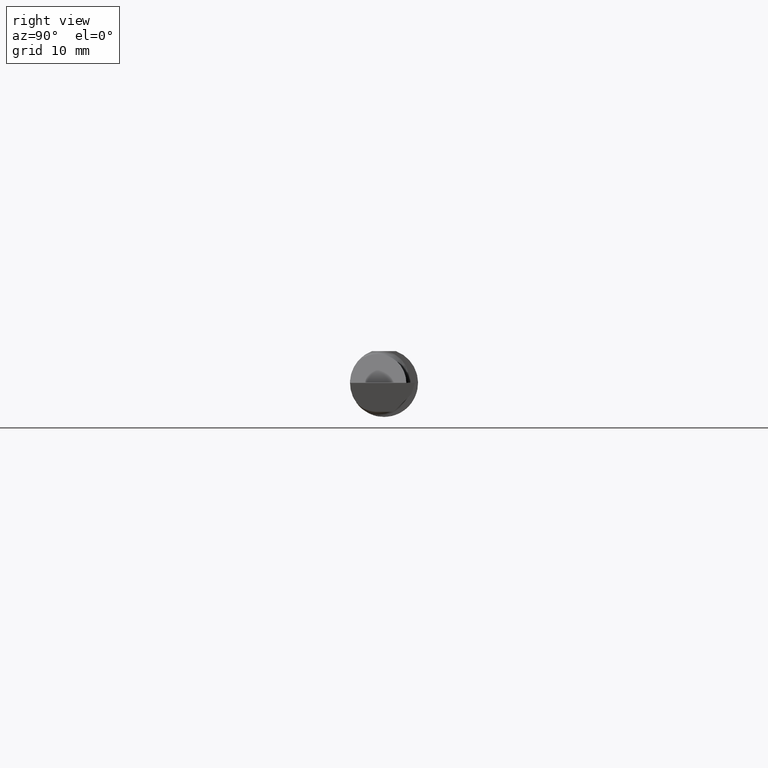
[diagram: clean part render]
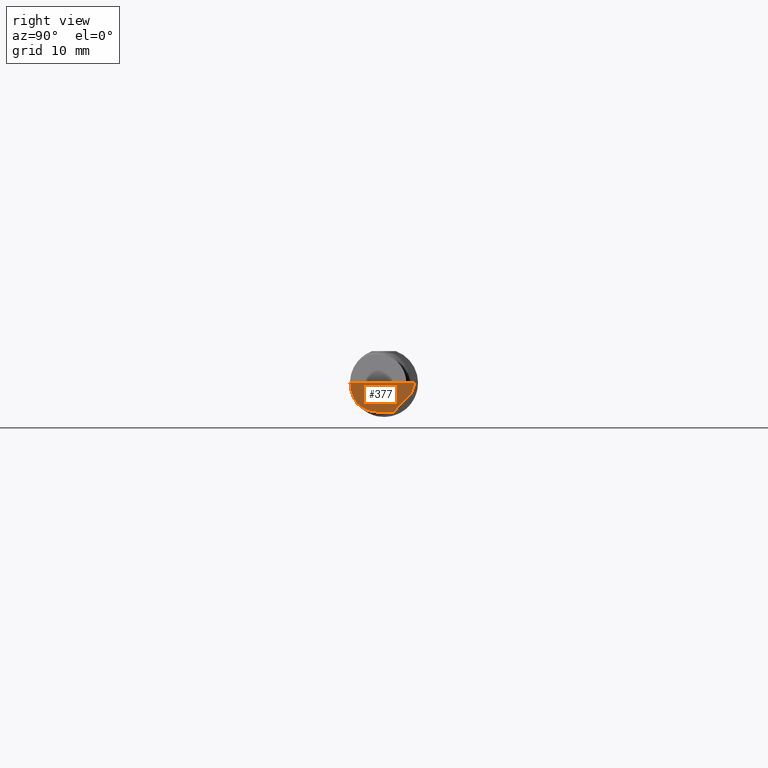
[diagram: same view with one face highlighted and labeled with its STEP entity id]
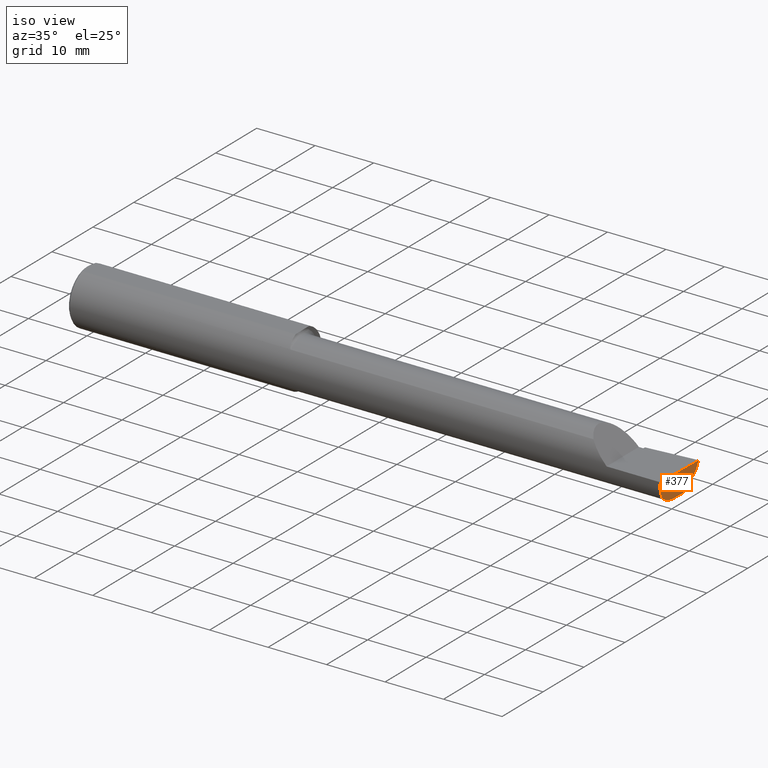
[diagram: same view with one face highlighted and labeled with its STEP entity id]
A machine part, right view. The second image highlights one B-rep face of the part: STEP entity #377.
A second angle (iso view) of the same face is appended — the face is thin or edge-on in the first view.
In plain terms, the highlighted planar face has unit normal (-0.9922, 0.026, 0.1219).
Its self-contained STEP definition (entity closure, byte-faithful):
#8 = ORIENTED_EDGE ( 'NONE', *, *, #462, .F. ) ;
#28 = CARTESIAN_POINT ( 'NONE',  ( 3.974646882977779239, -0.1156304438478838320, -0.1453804992321581224 ) ) ;
#42 = CARTESIAN_POINT ( 'NONE',  ( 3.977259974483411398, 0.05296767626088370873, -0.1600499999999999701 ) ) ;
#58 = LINE ( 'NONE', #571, #288 ) ;
#60 = VERTEX_POINT ( 'NONE', #42 ) ;
#66 = AXIS2_PLACEMENT_3D ( 'NONE', #241, #545, #193 ) ;
#118 = CARTESIAN_POINT ( 'NONE',  ( 3.977223734188806592, -0.1454917112299466964, -0.1180346748349052066 ) ) ;
#168 = ORIENTED_EDGE ( 'NONE', *, *, #200, .F. ) ;
#170 = DIRECTION ( 'NONE',  ( -0.1240019227988168882, -0.3022330132596584562, -0.9451342385281487068 ) ) ;
#189 = CARTESIAN_POINT ( 'NONE',  ( 3.985293537526797270, -0.1873499999999999888, -0.04340998088356431972 ) ) ;
#190 = VECTOR ( 'NONE', #212, 39.37007874015748143 ) ;
#193 = DIRECTION ( 'NONE',  ( 0.1219104985251813905, 0.000000000000000000, 0.9925410975618802478 ) ) ;
#198 = CARTESIAN_POINT ( 'NONE',  ( 3.990625440078222397, -0.1873499999999999888, -1.699186010220949670E-16 ) ) ;
#200 = EDGE_CURVE ( 'NONE', #293, #247, #515, .T. ) ;
#206 = LINE ( 'NONE', #265, #470 ) ;
#209 = EDGE_CURVE ( 'NONE', #247, #369, #58, .T. ) ;
#212 = DIRECTION ( 'NONE',  ( -0.1053106618240596676, -0.6976485211320203605, -0.7086580314005362924 ) ) ;
#214 = CARTESIAN_POINT ( 'NONE',  ( 3.999999999999977351, 0.1706500000000262807, 9.240475838569370243E-14 ) ) ;
#241 = CARTESIAN_POINT ( 'NONE',  ( 3.972657716785287008, -0.1026153499216718584, -0.1643501480114538116 ) ) ;
#244 =( BOUNDED_CURVE ( )  B_SPLINE_CURVE ( 3, ( #118, #28, #531, #535 ),
 .UNSPECIFIED., .F., .F. ) 
 B_SPLINE_CURVE_WITH_KNOTS ( ( 4, 4 ),
 ( 5.751779107031163463, 6.493234751459365128 ),
 .UNSPECIFIED. ) 
 CURVE ( )  GEOMETRIC_REPRESENTATION_ITEM ( )  RATIONAL_B_SPLINE_CURVE ( ( 1.000000000000000000, 0.9547092712975351336, 0.9547092712975351336, 1.000000000000000000 ) ) 
 REPRESENTATION_ITEM ( '' )  );
#247 = VERTEX_POINT ( 'NONE', #214 ) ;
#265 = CARTESIAN_POINT ( 'NONE',  ( 3.974910817315460587, -0.03674301662998945284, -0.1600499999999999701 ) ) ;
#288 = VECTOR ( 'NONE', #170, 39.37007874015748143 ) ;
#291 = CARTESIAN_POINT ( 'NONE',  ( 3.974893613600461340, -0.03740000000000000269, -0.1600499999999999701 ) ) ;
#293 = VERTEX_POINT ( 'NONE', #585 ) ;
#294 = FACE_OUTER_BOUND ( 'NONE', #305, .T. ) ;
#305 = EDGE_LOOP ( 'NONE', ( #547, #622, #8, #307, #168, #572 ) ) ;
#307 = ORIENTED_EDGE ( 'NONE', *, *, #209, .F. ) ;
#315 = VERTEX_POINT ( 'NONE', #397 ) ;
#317 =( BOUNDED_CURVE ( )  B_SPLINE_CURVE ( 3, ( #340, #598, #189, #198 ),
 .UNSPECIFIED., .F., .F. ) 
 B_SPLINE_CURVE_WITH_KNOTS ( ( 4, 4 ),
 ( 0.6791649766279211908, 1.360746882515117662 ),
 .UNSPECIFIED. ) 
 CURVE ( )  GEOMETRIC_REPRESENTATION_ITEM ( )  RATIONAL_B_SPLINE_CURVE ( ( 1.000000000000000000, 0.9616603987079550553, 0.9616603987079550553, 1.000000000000000000 ) ) 
 REPRESENTATION_ITEM ( '' )  );
#327 = EDGE_CURVE ( 'NONE', #315, #293, #317, .T. ) ;
#340 = CARTESIAN_POINT ( 'NONE',  ( 3.977223734188806592, -0.1454917112299466964, -0.1180346748349052066 ) ) ;
#342 = PLANE ( 'NONE',  #66 ) ;
#362 = CARTESIAN_POINT ( 'NONE',  ( 3.985884137426715768, 0.1100999211749778550, -0.1020161577657761470 ) ) ;
#369 = VERTEX_POINT ( 'NONE', #494 ) ;
#370 = LINE ( 'NONE', #362, #190 ) ;
#377 = ADVANCED_FACE ( 'NONE', ( #294 ), #342, .F. ) ;
#379 = VERTEX_POINT ( 'NONE', #291 ) ;
#397 = CARTESIAN_POINT ( 'NONE',  ( 3.977223734188806592, -0.1454917112299466964, -0.1180346748349052066 ) ) ;
#462 = EDGE_CURVE ( 'NONE', #369, #60, #370, .T. ) ;
#465 = CARTESIAN_POINT ( 'NONE',  ( 3.988992440003198858, -0.2497117568972564428, -1.697779208712868360E-16 ) ) ;
#470 = VECTOR ( 'NONE', #472, 39.37007874015748143 ) ;
#472 = DIRECTION ( 'NONE',  ( -0.02617694830780135234, -0.9996573249755592583, 0.000000000000000000 ) ) ;
#494 = CARTESIAN_POINT ( 'NONE',  ( 3.992127980275534060, 0.1514633278254498838, -0.06000000000000002554 ) ) ;
#507 = EDGE_CURVE ( 'NONE', #60, #379, #206, .T. ) ;
#515 = LINE ( 'NONE', #465, #607 ) ;
#529 = DIRECTION ( 'NONE',  ( 0.02617694830780135234, 0.9996573249755592583, -2.255099122138069919E-18 ) ) ;
#531 = CARTESIAN_POINT ( 'NONE',  ( 3.973833329693933880, -0.07789060880782654184, -0.1600499999999999701 ) ) ;
#535 = CARTESIAN_POINT ( 'NONE',  ( 3.974893613600461340, -0.03740000000000000269, -0.1600499999999999701 ) ) ;
#545 = DIRECTION ( 'NONE',  ( -0.9922060308645621607, 0.02598182930462236695, 0.1218693434050462515 ) ) ;
#547 = ORIENTED_EDGE ( 'NONE', *, *, #637, .T. ) ;
#571 = CARTESIAN_POINT ( 'NONE',  ( 3.993291301099660018, 0.1542987190042930390, -0.05113324764279480322 ) ) ;
#572 = ORIENTED_EDGE ( 'NONE', *, *, #327, .F. ) ;
#585 = CARTESIAN_POINT ( 'NONE',  ( 3.990625440078222397, -0.1873499999999999888, -1.699186010220949670E-16 ) ) ;
#598 = CARTESIAN_POINT ( 'NONE',  ( 3.980648201915105489, -0.1728409665178087251, -0.08432347972837178629 ) ) ;
#607 = VECTOR ( 'NONE', #529, 39.37007874015748143 ) ;
#622 = ORIENTED_EDGE ( 'NONE', *, *, #507, .F. ) ;
#637 = EDGE_CURVE ( 'NONE', #315, #379, #244, .T. ) ;